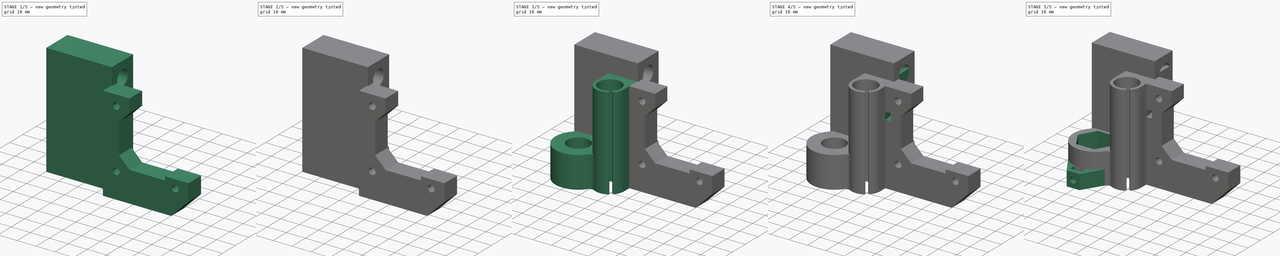
[diagram: build sequence overview — one tinted view per stage of 5, left to right]
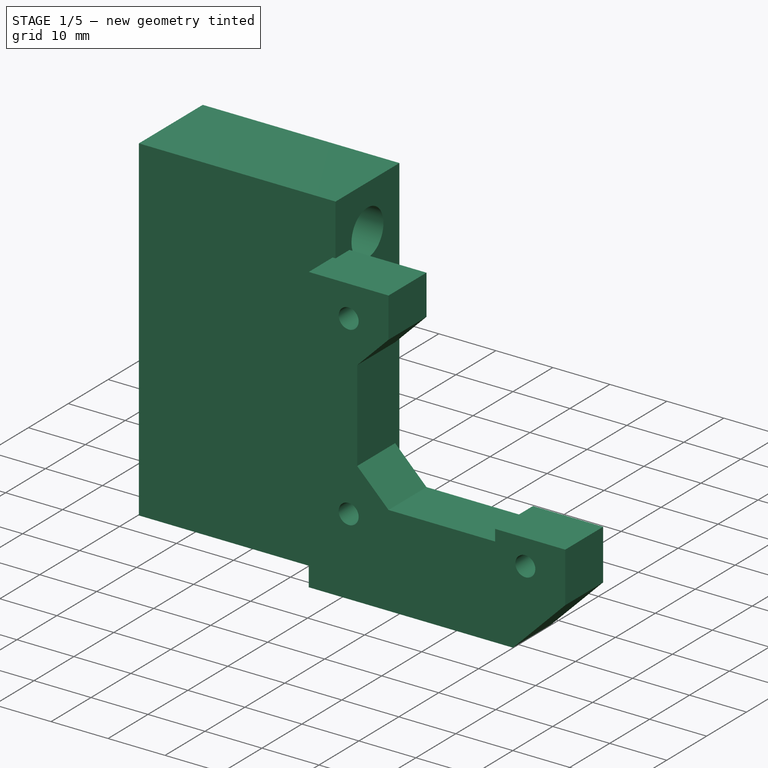
[diagram: stage 1 of 5 — iso view after this stage's code; geometry added in this stage tinted green]
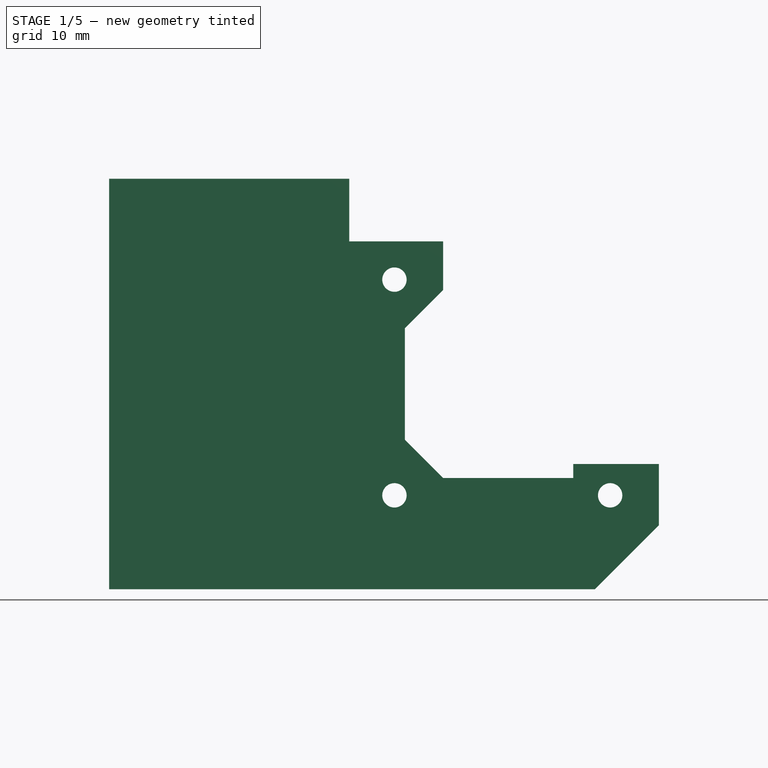
[diagram: stage 1 of 5 — front view after this stage's code; geometry added in this stage tinted green]
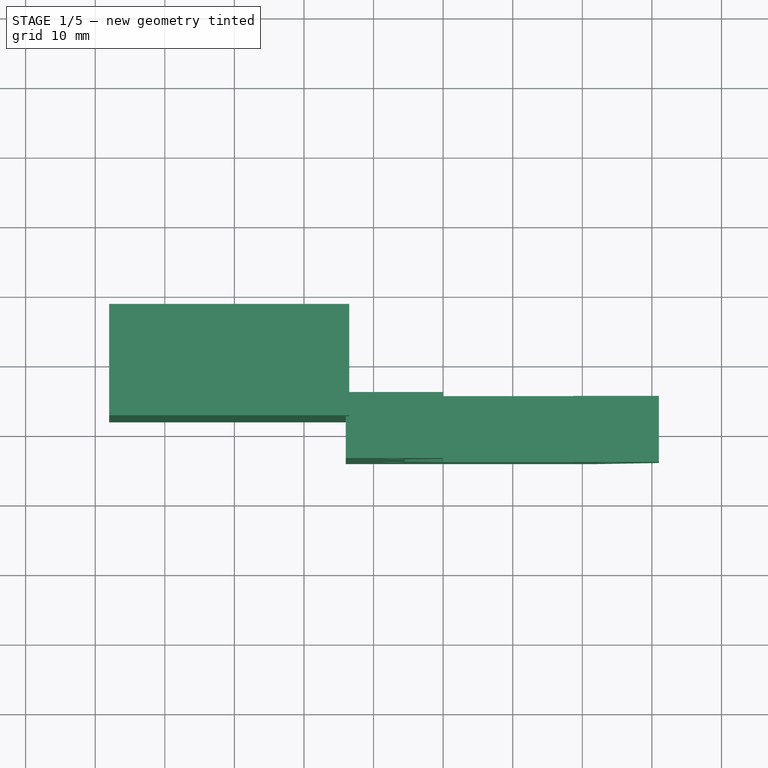
[diagram: stage 1 of 5 — top view after this stage's code; geometry added in this stage tinted green]
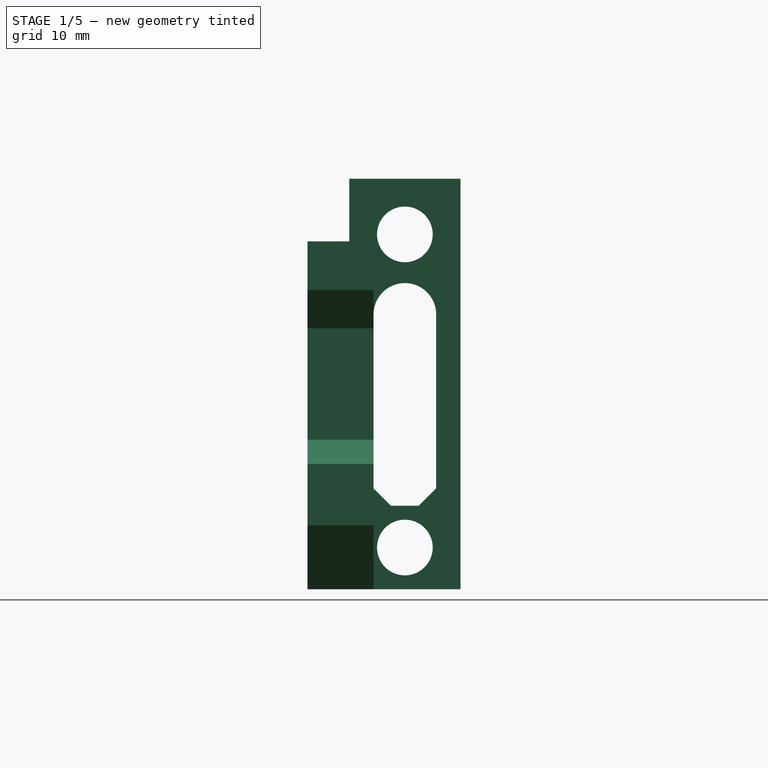
[diagram: stage 1 of 5 — right view after this stage's code; geometry added in this stage tinted green]
FCSTD DOCUMENT  (FreeCAD 0.15R4671 (Git))
Label: x-end-motor_felix_0.1
License: All rights reserved
LicenseURL: http://en.wikipedia.org/wiki/All_rights_reserved
objects: Sketcher::SketchObject×16, PartDesign::Pocket×8, PartDesign::Pad×6, Part::Box×2, App::MeasureDistance×2, Part::MultiFuse×1, PartDesign::Groove×1
note: 49 computed .brp shape members not serialized (recipe doc carries the construction recipe); baked Part::Feature solids carry a one-line shape summary decoded from their .brp

FEATURE [Part::Box] Box  label="Cube"
  Height = 59
  Length = 34.5
  Placement = pos=(-18,-8,-30) rot=(0,0,1;0rad)
  Width = 16
FEATURE [Sketcher::SketchObject] Sketch
  Placement = pos=(16.5,-8,-30) rot=(0.57735,0.57735,0.57735;2.0944rad)
  Support = -> Box [Face2]
  sketch-geometry (8):
    g0: Circle CenterX=8 CenterY=51 CenterZ=0 NormalX=0 NormalY=0 NormalZ=1 Radius=4
    g1: Circle CenterX=8 CenterY=6 CenterZ=0 NormalX=0 NormalY=0 NormalZ=1 Radius=4
    g2: ArcOfCircle CenterX=8 CenterY=39.5 CenterZ=0 NormalX=0 NormalY=0 NormalZ=1 Radius=4.5 StartAngle=6.28318 EndAngle=9.42478
    g3: LineSegment StartX=3.5 StartY=39.5 StartZ=0 EndX=3.5 EndY=14.5 EndZ=0
    g4: LineSegment StartX=3.5 StartY=14.5 StartZ=0 EndX=6 EndY=12 EndZ=0
    g5: LineSegment StartX=6 StartY=12 StartZ=0 EndX=10 EndY=12 EndZ=0
    g6: LineSegment StartX=10 StartY=12 StartZ=0 EndX=12.5 EndY=14.5 EndZ=0
    g7: LineSegment StartX=12.5 StartY=14.5 StartZ=0 EndX=12.5 EndY=39.5 EndZ=0
  constraints (24):
    c: Equal(g0,g1)
    c: Radius(g0) = 4
    c: Tangent(g2,g3)
    c: Coincident(g3,g4)
    c: Coincident(g4,g5)
    c: Horizontal(g5)
    c: Coincident(g5,g6)
    c: Coincident(g6,g7)
    c: Coincident(g7,g2)
    c: Vertical(g7)
    c: Tangent(g7,g2)
    c: Vertical(g3)
    c: DistanceX(g0,g2) = 0
    c: DistanceX(g2,g1) = 0
    c: Angle(g5,g4) = 2.35619
    c: Equal(g4,g6)
    c: Angle(g6,g5) = 2.35619
    c: DistanceY(g-1,g1) = 6
    c: DistanceY(g0,g1) = -45
    c: Radius(g2) = 4.5
    c: DistanceX(g-2,g2) = 3.5
    c: Distance(g1,g5) = 6
    c: Distance(g5) = 4
    c: DistanceY(g2,g0) = 11.5
FEATURE [PartDesign::Pocket] Pocket
  Length = 5
  Placement = pos=(-18,-8,-30) rot=(0,0,1;0rad)
  Sketch = -> Sketch
  Type = 1
FEATURE [Part::Box] Box001  label="Würfel"
  Height = 50
  Length = 45
  Placement = pos=(16,-14,-30) rot=(0,0,1;0rad)
  Width = 9.5
FEATURE [Sketcher::SketchObject] Sketch008
  ExternalGeometry = -> [Box001]
  Placement = pos=(16,-14,-30) rot=(1,0,0;1.5708rad)
  Support = -> Box001 [Face3]
  sketch-geometry (17):
    g0: LineSegment StartX=14 StartY=50 StartZ=0 EndX=14 EndY=43 EndZ=0
    g1: LineSegment StartX=14 StartY=43 StartZ=0 EndX=8.5 EndY=37.5 EndZ=0
    g2: LineSegment StartX=8.5 StartY=37.5 StartZ=0 EndX=8.5 EndY=21.5 EndZ=0
    g3: LineSegment StartX=8.5 StartY=21.5 StartZ=0 EndX=14 EndY=16 EndZ=0
    g4: LineSegment StartX=14 StartY=16 StartZ=0 EndX=32.6921 EndY=16 EndZ=0
    g5: LineSegment StartX=32.6921 StartY=16 StartZ=0 EndX=32.6921 EndY=18 EndZ=0
    g6: LineSegment StartX=45 StartY=18 StartZ=0 EndX=45 EndY=50 EndZ=0
    g7: LineSegment StartX=45 StartY=50 StartZ=0 EndX=14 EndY=50 EndZ=0
    g8: LineSegment StartX=45 StartY=9.19239 StartZ=0 EndX=35.8076 EndY=0 EndZ=0
    g9: Circle CenterX=7 CenterY=44.5 CenterZ=0 NormalX=0 NormalY=0 NormalZ=1 Radius=1.75
    g10: Circle CenterX=7 CenterY=13.5 CenterZ=0 NormalX=0 NormalY=0 NormalZ=1 Radius=1.75
    g11: Circle CenterX=38 CenterY=13.5 CenterZ=0 NormalX=0 NormalY=0 NormalZ=1 Radius=1.75
    g12: LineSegment [constr] StartX=7 StartY=44.5 StartZ=0 EndX=7 EndY=13.5 EndZ=0
    g13: LineSegment [constr] StartX=7 StartY=13.5 StartZ=0 EndX=38 EndY=13.5 EndZ=0
    g14: LineSegment StartX=32.6921 StartY=18 StartZ=0 EndX=45 EndY=18 EndZ=0
    g15: LineSegment StartX=45 StartY=0 StartZ=0 EndX=45 EndY=9.19239 EndZ=0
    g16: LineSegment StartX=45 StartY=0 StartZ=0 EndX=35.8076 EndY=0 EndZ=0
  constraints (47):
    c: Vertical(g0)
    c: Coincident(g0,g1)
    c: Coincident(g1,g2)
    c: Vertical(g2)
    c: Coincident(g2,g3)
    c: Coincident(g3,g4)
    c: Horizontal(g4)
    c: Coincident(g4,g5)
    c: Vertical(g5)
    c: Vertical(g6)
    c: Coincident(g6,g7)
    c: Horizontal(g7)
    c: DistanceX(g-2,g0) = 14
    c: DistanceX(g-2,g1) = 8.5
    c: Angle(g0,g1) = 2.35619
    c: Angle(g3,g2) = 2.35619
    c: DistanceY(g-1,g3) = 16
    c: Equal(g1,g3)
    c: Distance(g5) = 2
    c: PointOnObject(g8,g-3)
    c: PointOnObject(g8,g-1)
    c: Equal(g11,g10)
    c: Equal(g10,g9)
    c: Coincident(g12,g9)
    c: Coincident(g12,g10)
    c: Vertical(g12)
    c: Coincident(g13,g10)
    c: Horizontal(g13)
    c: Radius(g10) = 1.75
    c: Distance(g12) = 31
    c: Equal(g13,g12)
    c: Angle(g8,g-1) = 2.35619
    c: DistanceX(g0,g9) = -7
    c: Coincident(g14,g5)
    c: Coincident(g14,g6)
    c: Horizontal(g14)
    c: Coincident(g11,g13)
    c: Distance(g11,g14) = 4.5
    c: DistanceY(g1,g9) = 7
    c: Distance(g8) = 13
    c: PointOnObject(g6,g-3)
    c: Coincident(g-3,g6)
    c: Coincident(g0,g7)
    c: Coincident(g15,g-3)
    c: Coincident(g15,g8)
    c: Coincident(g16,g15)
    c: Coincident(g16,g8)
FEATURE [PartDesign::Pocket] Pocket002
  Length = 5
  Placement = pos=(16,-14,-30) rot=(0,0,1;0rad)
  Sketch = -> Sketch008
  Type = 1
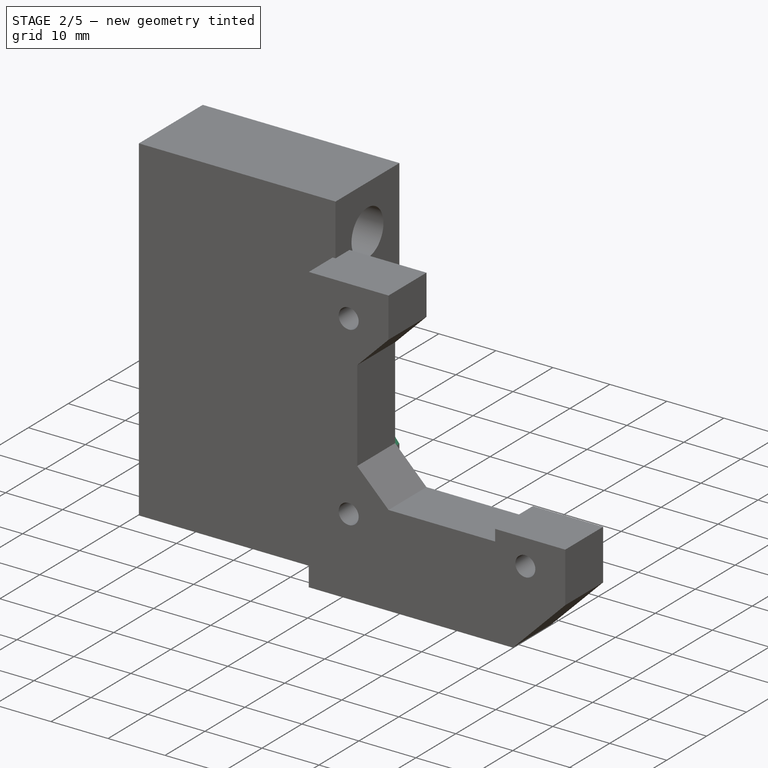
[diagram: stage 2 of 5 — iso view after this stage's code; geometry added in this stage tinted green]
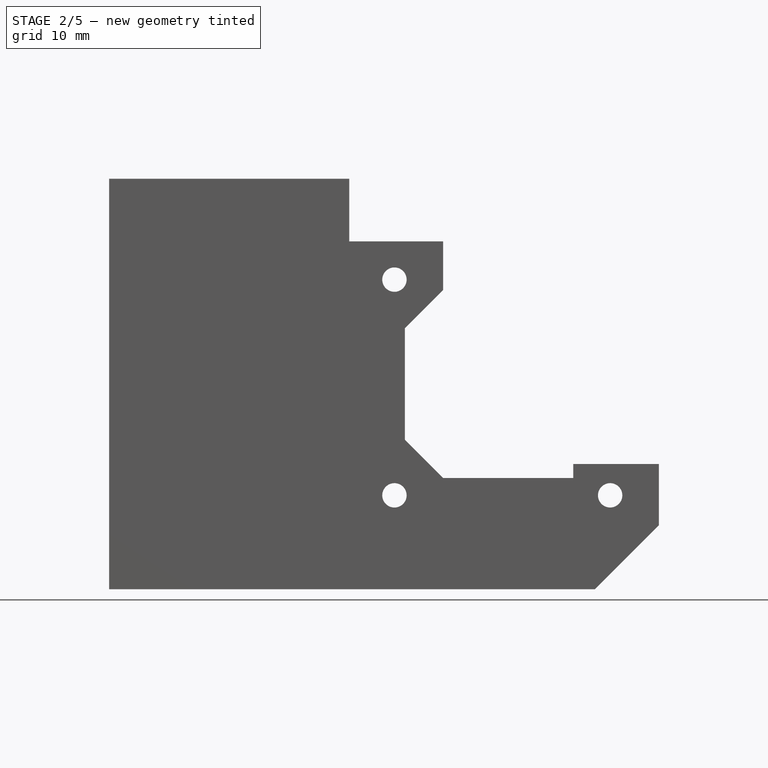
[diagram: stage 2 of 5 — front view after this stage's code; geometry added in this stage tinted green]
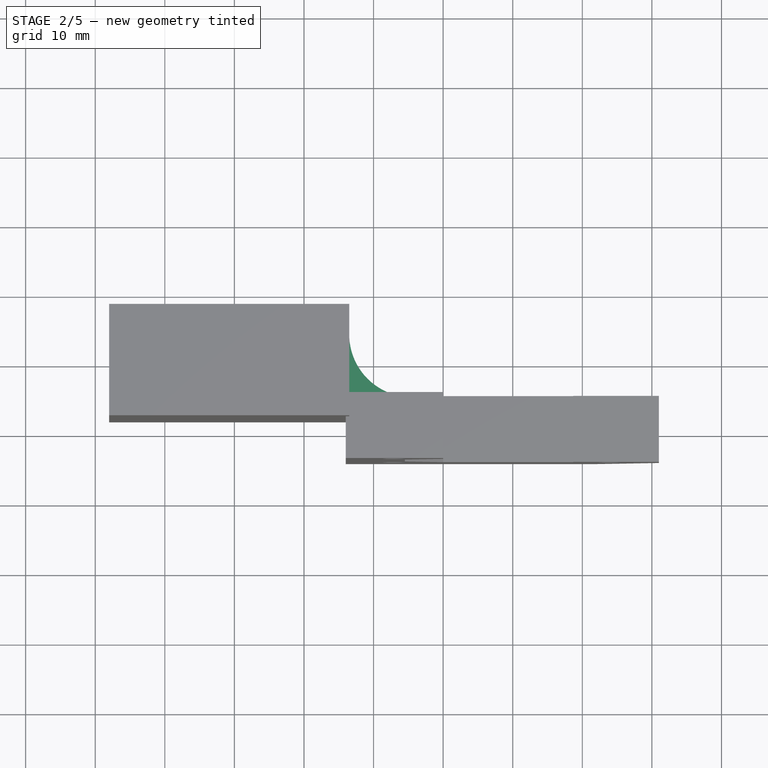
[diagram: stage 2 of 5 — top view after this stage's code; geometry added in this stage tinted green]
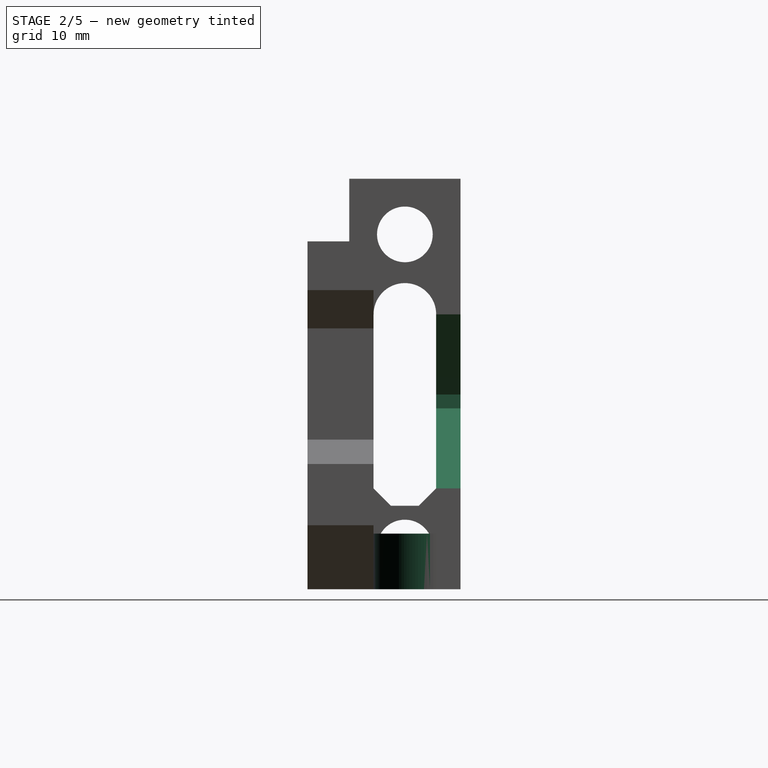
[diagram: stage 2 of 5 — right view after this stage's code; geometry added in this stage tinted green]
FEATURE [Sketcher::SketchObject] Sketch007
  ExternalGeometry = -> [Pocket]
  Placement = pos=(-18,8,-30) rot=(0,0.707107,0.707107;3.14159rad)
  Support = -> Pocket [Face5]
  sketch-geometry (4):
    g0: LineSegment StartX=-34.5 StartY=39.5 StartZ=0 EndX=-24.8504 EndY=28 EndZ=0
    g1: LineSegment StartX=-24.8504 StartY=28 StartZ=0 EndX=-24.8504 EndY=26 EndZ=0
    g2: LineSegment StartX=-24.8504 StartY=26 StartZ=0 EndX=-34.5 EndY=14.5 EndZ=0
    g3: LineSegment StartX=-34.5 StartY=14.5 StartZ=0 EndX=-34.5 EndY=39.5 EndZ=0
  constraints (10):
    c: Coincident(g-5,g0)
    c: Coincident(g0,g1)
    c: Vertical(g1)
    c: Coincident(g1,g2)
    c: Coincident(g2,g-4)
    c: Coincident(g2,g3)
    c: Coincident(g3,g0)
    c: Equal(g2,g0)
    c: Distance(g1) = 2
    c: Angle(g0,g-5) = 0.872665
FEATURE [PartDesign::Pocket] Pocket001
  Length = 5
  Placement = pos=(-18,-8,-30) rot=(0,0,1;0rad)
  Sketch = -> Sketch007
  Type = 2
FEATURE [Part::MultiFuse] Fusion
  Shapes = -> [Pocket002,Pocket001]
FEATURE [Sketcher::SketchObject] Sketch010
  ExternalGeometry = -> [Fusion]
  Placement = pos=(0,0,-30) rot=(1,0,0;3.14159rad)
  Support = -> Fusion [Face23]
  sketch-geometry (3):
    g0: ArcOfCircle CenterX=25.5 CenterY=-4.5 CenterZ=0 NormalX=0 NormalY=0 NormalZ=1 Radius=9 StartAngle=1.5708 EndAngle=3.14159
    g1: LineSegment StartX=16.5 StartY=-4.49997 StartZ=0 EndX=16.5 EndY=4.5 EndZ=0
    g2: LineSegment StartX=16.5 StartY=4.5 StartZ=0 EndX=25.5 EndY=4.5 EndZ=0
  constraints (10):
    c: PointOnObject(g0,g-3)
    c: PointOnObject(g0,g-4)
    c: Tangent(g0,g-3)
    c: Tangent(g0,g-4)
    c: Radius(g0) = 9
    c: Coincident(g0,g1)
    c: Coincident(g1,g2)
    c: Coincident(g2,g0)
    c: Horizontal(g2)
    c: Vertical(g1)
FEATURE [PartDesign::Pad] Pad
  Length = 8
  Length2 = 100
  Reversed = true
  Sketch = -> Sketch010
  Type = 0
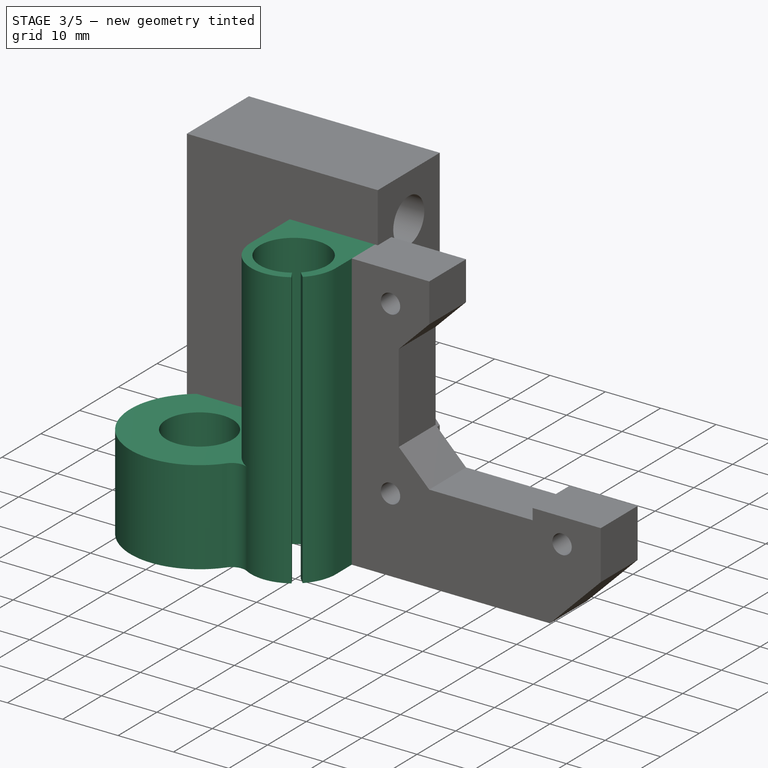
[diagram: stage 3 of 5 — iso view after this stage's code; geometry added in this stage tinted green]
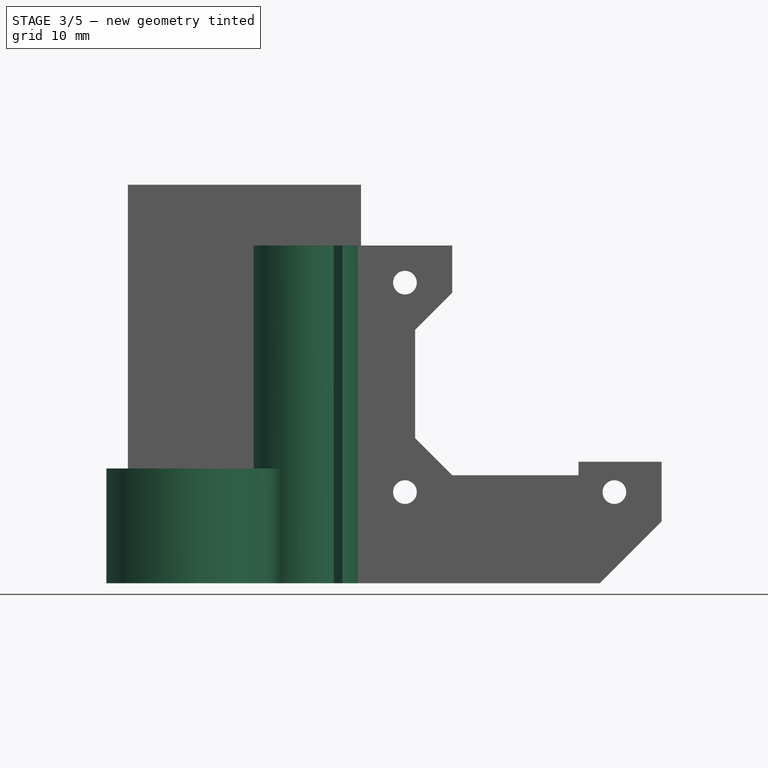
[diagram: stage 3 of 5 — front view after this stage's code; geometry added in this stage tinted green]
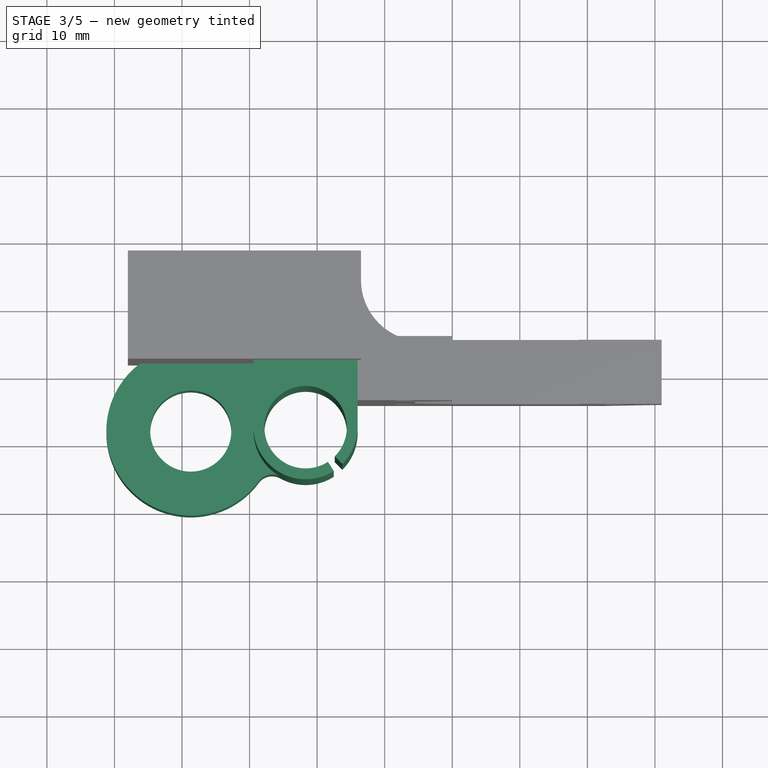
[diagram: stage 3 of 5 — top view after this stage's code; geometry added in this stage tinted green]
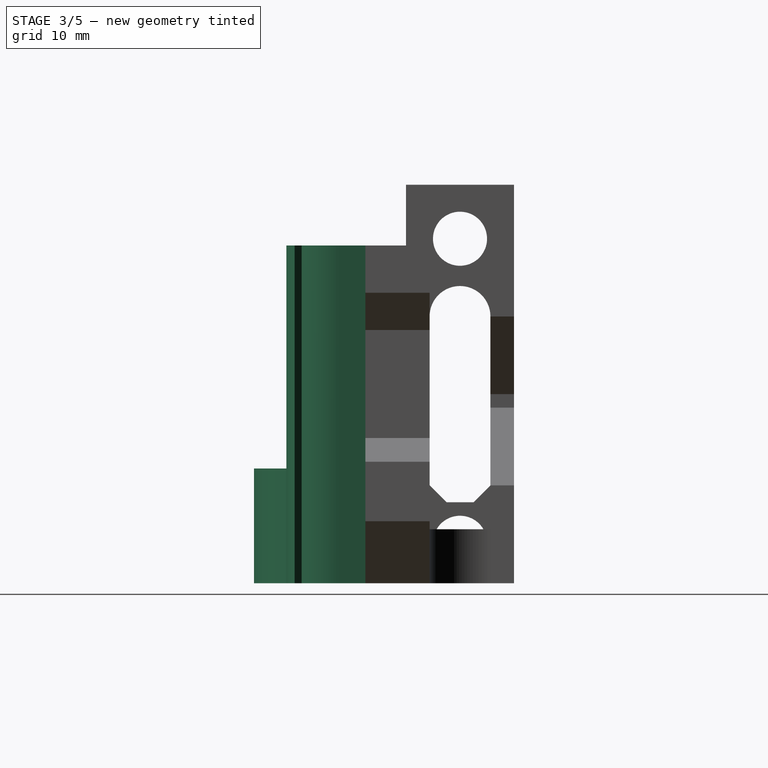
[diagram: stage 3 of 5 — right view after this stage's code; geometry added in this stage tinted green]
FEATURE [Sketcher::SketchObject] Sketch011
  ExternalGeometry = -> [Pad]
  Placement = pos=(16.5,0,0) rot=(0.57735,0.57735,0.57735;2.0944rad)
  Support = -> Pad [Face25]
  sketch-geometry (2):
    g0: ArcOfCircle CenterX=0 CenterY=-24 CenterZ=0 NormalX=0 NormalY=0 NormalZ=1 Radius=4 StartAngle=2.61799 EndAngle=6.80678
    g1: LineSegment StartX=-3.4641 StartY=-22 StartZ=0 EndX=3.4641 EndY=-22 EndZ=0
  constraints (5):
    c: Coincident(g0,g-3)
    c: Coincident(g0,g-3)
    c: Coincident(g1,g-3)
    c: Coincident(g1,g0)
    c: PointOnObject(g0,g1)
FEATURE [PartDesign::Pad] Pad001
  Length = 2
  Length2 = 100
  Reversed = true
  Sketch = -> Sketch011
  Type = 0
FEATURE [Sketcher::SketchObject] Sketch009
  ExternalGeometry = -> [Pocket002]
  Placement = pos=(0,-4.5,0) rot=(0,0.707107,0.707107;3.14159rad)
  Support = -> Pad001 [Face19]
  sketch-geometry (3):
    g0: Circle CenterX=-23 CenterY=14.5 CenterZ=0 NormalX=0 NormalY=0 NormalZ=1 Radius=3.5
    g1: Circle CenterX=-54 CenterY=-16.5 CenterZ=0 NormalX=0 NormalY=0 NormalZ=1 Radius=3.5
    g2: Circle CenterX=-23 CenterY=-16.5 CenterZ=0 NormalX=0 NormalY=0 NormalZ=1 Radius=3.5
  constraints (6):
    c: Coincident(g0,g-3)
    c: Coincident(g1,g-4)
    c: Coincident(g2,g-5)
    c: Equal(g0,g2)
    c: Equal(g2,g1)
    c: Radius(g1) = 3.5
FEATURE [PartDesign::Pocket] Pocket003
  Length = 2
  Sketch = -> Sketch009
  Type = 0
FEATURE [Sketcher::SketchObject] Sketch012
  ExternalGeometry = -> [Pocket003]
  Placement = pos=(0,0,-30) rot=(1,0,0;3.14159rad)
  Support = -> Pocket003 [Face26]
  sketch-geometry (8):
    g0: ArcOfCircle CenterX=8.3 CenterY=18 CenterZ=0 NormalX=0 NormalY=0 NormalZ=1 Radius=7.7 StartAngle=4.56784e-06 EndAngle=0.785398
    g1: ArcOfCircle CenterX=8.3 CenterY=18 CenterZ=0 NormalX=0 NormalY=0 NormalZ=1 Radius=6.1 StartAngle=0.998918 EndAngle=7.06858
    g2: LineSegment StartX=16 StartY=18 StartZ=0 EndX=16 EndY=8 EndZ=0
    g3: LineSegment StartX=13.7447 StartY=23.4447 StartZ=0 EndX=12.6134 EndY=22.3134 EndZ=0
    g4: ArcOfCircle CenterX=8.3 CenterY=18 CenterZ=0 NormalX=0 NormalY=0 NormalZ=1 Radius=7.7 StartAngle=0.998918 EndAngle=3.14159
    g5: LineSegment StartX=11.6014 StartY=23.1294 StartZ=0 EndX=12.4673 EndY=24.4748 EndZ=0
    g6: LineSegment StartX=0.6 StartY=18 StartZ=0 EndX=0.6 EndY=8 EndZ=0
    g7: LineSegment StartX=0.6 StartY=8 StartZ=0 EndX=16 EndY=8 EndZ=0
  constraints (24):
    c: Coincident(g1,g0)
    c: Radius(g1) = 6.1
    c: Coincident(g2,g0)
    c: Vertical(g2)
    c: Coincident(g3,g0)
    c: Coincident(g3,g1)
    c: Perpendicular(g0,g3)
    c: Distance(g3) = 1.6
    c: Coincident(g2,g-3)
    c: Tangent(g2,g0)
    c: Coincident(g5,g1)
    c: Coincident(g5,g4)
    c: Perpendicular(g4,g5)
    c: Distance(g1,g1) = 1.3
    c: Coincident(g4,g0)
    c: Equal(g4,g0)
    c: Distance(g0,g-3) = 10
    c: Coincident(g6,g4)
    c: Vertical(g6)
    c: Coincident(g7,g6)
    c: PointOnObject(g6,g-3)
    c: Tangent(g6,g4)
    c: Angle(g3,g-3) = 2.35619
    c: Coincident(g7,g2)
FEATURE [PartDesign::Pad] Pad002
  Length = 50
  Length2 = 100
  Reversed = true
  Sketch = -> Sketch012
  Type = 0
FEATURE [Sketcher::SketchObject] Sketch013
  ExternalGeometry = -> [Pad002]
  Placement = pos=(0,0,-30) rot=(1,0,0;3.14159rad)
  Support = -> Pad002 [Face35]
  sketch-geometry (7):
    g0: LineSegment [constr] StartX=8.3 StartY=18 StartZ=0 EndX=-8.7 EndY=18 EndZ=0
    g1: Circle CenterX=-8.7 CenterY=18 CenterZ=0 NormalX=0 NormalY=0 NormalZ=1 Radius=6
    g2: ArcOfCircle CenterX=-8.7 CenterY=18 CenterZ=0 NormalX=0 NormalY=0 NormalZ=1 Radius=12.5 StartAngle=0.637068 EndAngle=4.06889
    g3: LineSegment StartX=-16.2 StartY=8 StartZ=0 EndX=0.6 EndY=8 EndZ=0
    g4: LineSegment StartX=0.6 StartY=8 StartZ=0 EndX=0.6 EndY=18 EndZ=0
    g5: ArcOfCircle CenterX=3.35765 CenterY=26.9226 CenterZ=0 NormalX=0 NormalY=0 NormalZ=1 Radius=2.5 StartAngle=3.77866 EndAngle=5.21823
    g6: ArcOfCircle CenterX=8.3 CenterY=18 CenterZ=0 NormalX=0 NormalY=0 NormalZ=1 Radius=7.7 StartAngle=2.07664 EndAngle=3.14159
  constraints (20):
    c: Coincident(g0,g-3)
    c: Horizontal(g0)
    c: Distance(g0) = 17
    c: Coincident(g1,g0)
    c: Radius(g1) = 6
    c: Coincident(g2,g0)
    c: Radius(g2) = 12.5
    c: PointOnObject(g2,g-4)
    c: Coincident(g4,g3)
    c: Coincident(g3,g2)
    c: Coincident(g3,g-4)
    c: Coincident(g5,g2)
    c: PointOnObject(g5,g-3)
    c: Tangent(g5,g-3)
    c: Coincident(g6,g5)
    c: Coincident(g6,g0)
    c: Coincident(g4,g6)
    c: Tangent(g4,g6)
    c: Radius(g5) = 2.5
    c: Tangent(g5,g2)
FEATURE [PartDesign::Pad] Pad003
  Length = 17
  Length2 = 100
  Reversed = true
  Sketch = -> Sketch013
  Type = 0
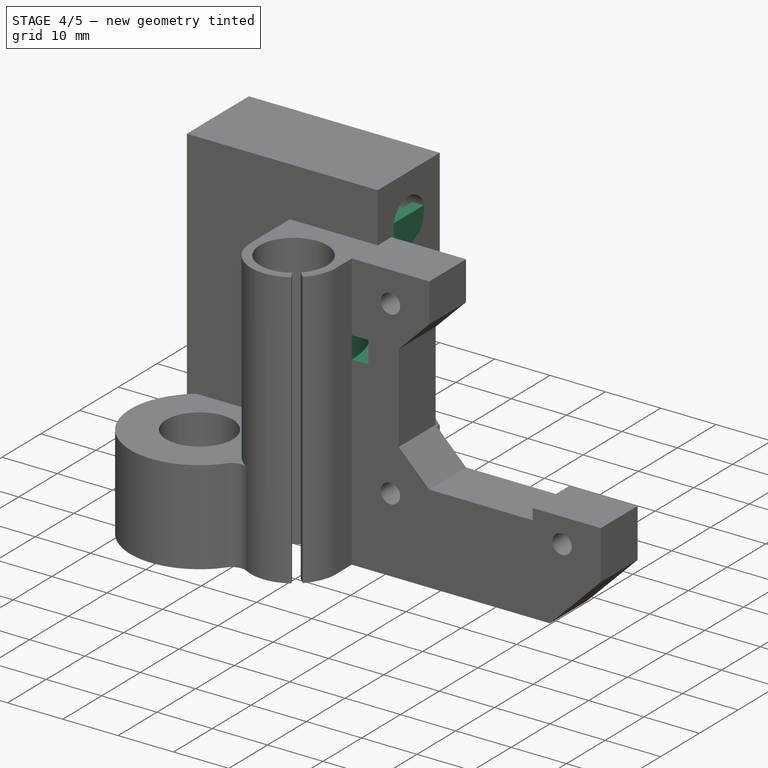
[diagram: stage 4 of 5 — iso view after this stage's code; geometry added in this stage tinted green]
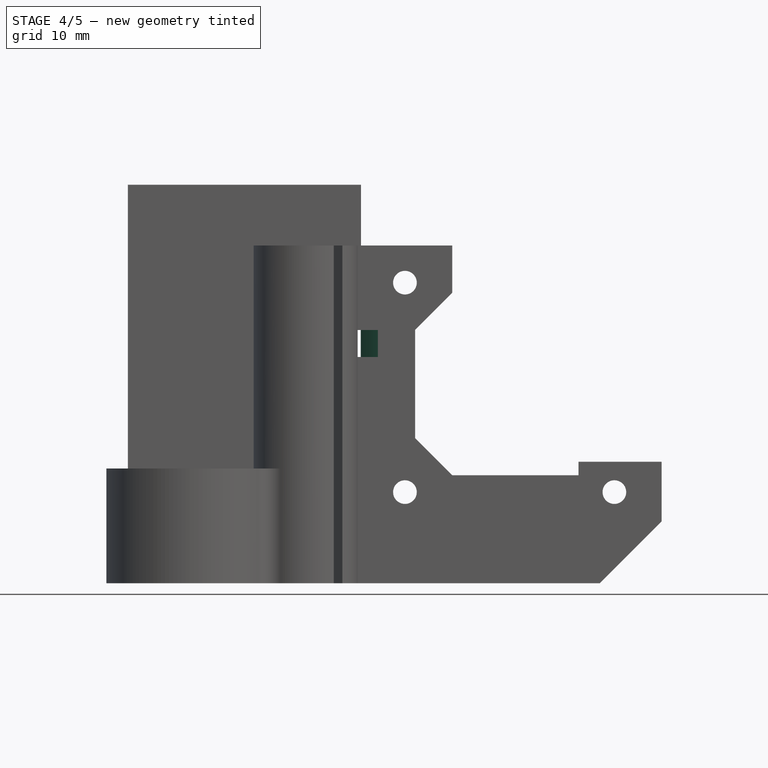
[diagram: stage 4 of 5 — front view after this stage's code; geometry added in this stage tinted green]
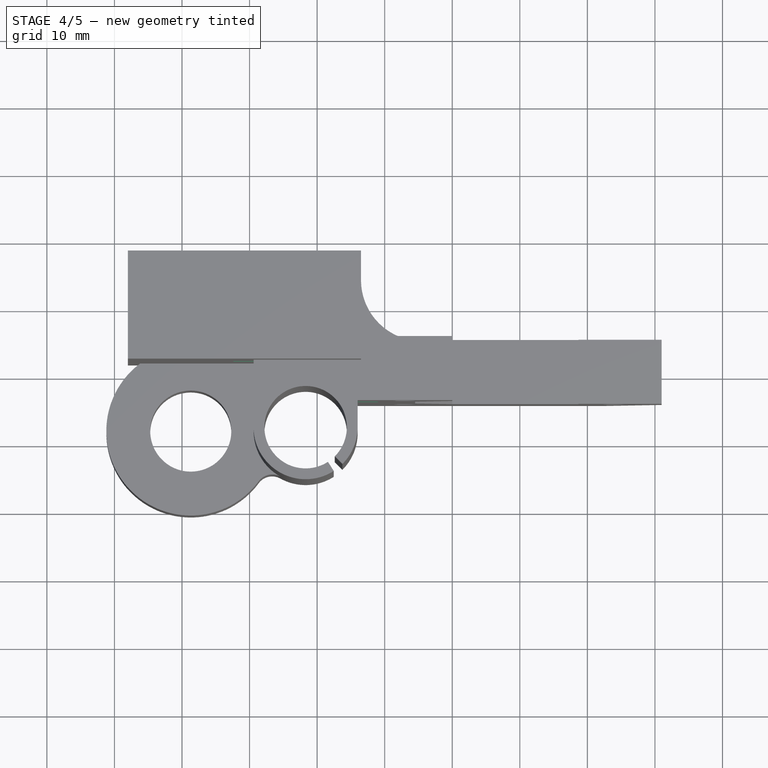
[diagram: stage 4 of 5 — top view after this stage's code; geometry added in this stage tinted green]
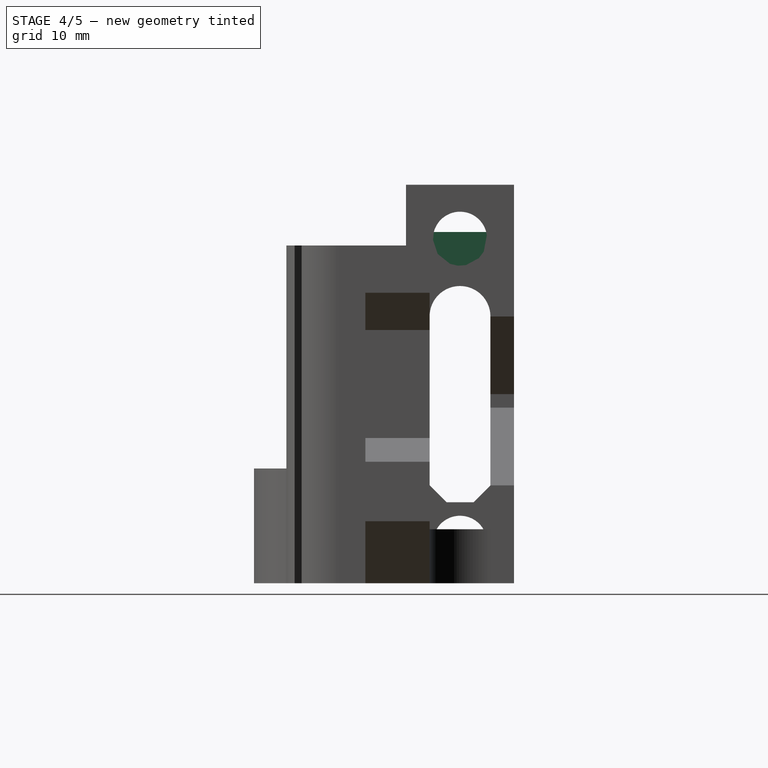
[diagram: stage 4 of 5 — right view after this stage's code; geometry added in this stage tinted green]
FEATURE [Sketcher::SketchObject] Sketch014
  ExternalGeometry = -> [Pad003]
  Placement = pos=(0,0,-13) rot=(0,0,1;0rad)
  Support = -> Pad003 [Face55]
  sketch-geometry (7):
    g0: LineSegment StartX=-12.9771 StartY=13.2 StartZ=0 EndX=-23.0229 EndY=13.2 EndZ=0
    g1: LineSegment StartX=-23.0229 StartY=13.2 StartZ=0 EndX=-28.0459 EndY=4.5 EndZ=0
    g2: LineSegment StartX=-28.0459 StartY=4.5 StartZ=0 EndX=-23.0229 EndY=-4.2 EndZ=0
    g3: LineSegment StartX=-23.0229 StartY=-4.2 StartZ=0 EndX=-12.9771 EndY=-4.2 EndZ=0
    g4: LineSegment StartX=-12.9771 StartY=-4.2 StartZ=0 EndX=-7.95411 EndY=4.5 EndZ=0
    g5: LineSegment StartX=-7.95411 StartY=4.5 StartZ=0 EndX=-12.9771 EndY=13.2 EndZ=0
    g6: Circle [constr] CenterX=-9.39189 CenterY=-19.8561 CenterZ=0 NormalX=0 NormalY=0 NormalZ=1 Radius=10.0459
  constraints (17):
    c: Coincident(g0,g1)
    c: Coincident(g1,g2)
    c: Coincident(g2,g3)
    c: Coincident(g3,g4)
    c: Coincident(g4,g5)
    c: Coincident(g5,g0)
    c: Equal(g0, g1-g5) x5
    c: PointOnObject(g0,g6)
    c: PointOnObject(g1,g6)
    c: PointOnObject(g2,g6)
    c: PointOnObject(g3,g6)
    c: PointOnObject(g4,g6)
    c: PointOnObject(g5,g6)
    c: Coincident(g3,g-3)
    c: Distance(g2,g0) = 17.4
    c: Horizontal(g0)
    c: Coincident(g6,g-3)
FEATURE [Sketcher::SketchObject] Sketch019
  ExternalGeometry = -> [Pad003]
  Placement = pos=(16.5,0,0) rot=(0.57735,0.57735,0.57735;2.0944rad)
  Support = -> Pad003 [Face25]
  sketch-geometry (4):
    g0: LineSegment StartX=-4.5 StartY=22 StartZ=0 EndX=4.5 EndY=22 EndZ=0
    g1: LineSegment StartX=4.5 StartY=22 StartZ=0 EndX=4.5 EndY=16.5 EndZ=0
    g2: LineSegment StartX=4.5 StartY=16.5 StartZ=0 EndX=-4.5 EndY=16.5 EndZ=0
    g3: LineSegment StartX=-4.5 StartY=16.5 StartZ=0 EndX=-4.5 EndY=22 EndZ=0
  constraints (12):
    c: Coincident(g0,g1)
    c: Coincident(g1,g2)
    c: Coincident(g2,g3)
    c: Coincident(g3,g0)
    c: Horizontal(g0)
    c: Horizontal(g2)
    c: Vertical(g1)
    c: Vertical(g3)
    c: DistanceX(g-2,g0) = 4.5
    c: Distance(g1) = 5.5
    c: Distance(g-3,g0) = 1
    c: Distance(g-3,g3) = 4.5
FEATURE [PartDesign::Pad] Pad004
  Length = 2
  Length2 = 100
  Reversed = true
  Sketch = -> Sketch019
  Type = 0
FEATURE [Sketcher::SketchObject] Sketch015
  ExternalGeometry = -> [Pad004]
  Placement = pos=(0,-14,0) rot=(1,0,0;1.5708rad)
  Support = -> Pad004 [Face2]
  sketch-geometry (4):
    g0: LineSegment StartX=16 StartY=7.5 StartZ=0 EndX=19 EndY=7.5 EndZ=0
    g1: LineSegment StartX=19 StartY=7.5 StartZ=0 EndX=19 EndY=3.5 EndZ=0
    g2: LineSegment StartX=19 StartY=3.5 StartZ=0 EndX=16 EndY=3.5 EndZ=0
    g3: LineSegment StartX=16 StartY=3.5 StartZ=0 EndX=16 EndY=7.5 EndZ=0
  constraints (12):
    c: Coincident(g0,g1)
    c: Coincident(g1,g2)
    c: Coincident(g2,g3)
    c: Coincident(g3,g0)
    c: Horizontal(g0)
    c: Horizontal(g2)
    c: Vertical(g1)
    c: Vertical(g3)
    c: Distance(g1) = 4
    c: Distance(g2) = 3
    c: PointOnObject(g-3,g0)
    c: PointOnObject(g0,g-4)
FEATURE [PartDesign::Groove] Groove
  Angle = 40
  Axis = (0,0,1)
  Base = (0,-14,0)
  ReferenceAxis = -> Sketch015 [V_Axis]
  Sketch = -> Sketch015
FEATURE [Sketcher::SketchObject] Sketch016
  ExternalGeometry = -> [Groove]
  Placement = pos=(0,-8,0) rot=(1,0,0;1.5708rad)
  Support = -> Groove [Face33]
  sketch-geometry (4):
    g0: LineSegment StartX=0.6 StartY=7.5 StartZ=0 EndX=-2.4 EndY=7.5 EndZ=0
    g1: LineSegment StartX=-2.4 StartY=7.5 StartZ=0 EndX=-2.4 EndY=3.5 EndZ=0
    g2: LineSegment StartX=-2.4 StartY=3.5 StartZ=0 EndX=0.6 EndY=3.5 EndZ=0
    g3: LineSegment StartX=0.6 StartY=3.5 StartZ=0 EndX=0.6 EndY=7.5 EndZ=0
  constraints (12):
    c: Coincident(g0,g1)
    c: Coincident(g1,g2)
    c: Coincident(g2,g3)
    c: Coincident(g3,g0)
    c: Horizontal(g0)
    c: Horizontal(g2)
    c: Vertical(g1)
    c: Vertical(g3)
    c: Distance(g0) = 3
    c: Distance(g1) = 4
    c: PointOnObject(g-3,g0)
    c: PointOnObject(g0,g-4)
FEATURE [PartDesign::Pocket] Pocket004
  Length = 5
  Sketch = -> Sketch016
  Type = 0
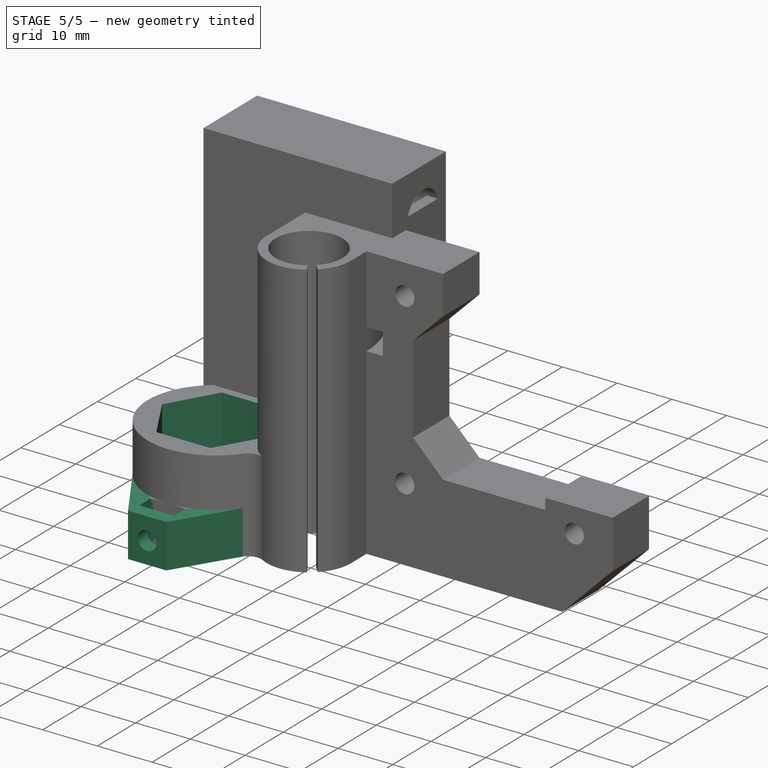
[diagram: stage 5 of 5 — iso view after this stage's code; geometry added in this stage tinted green]
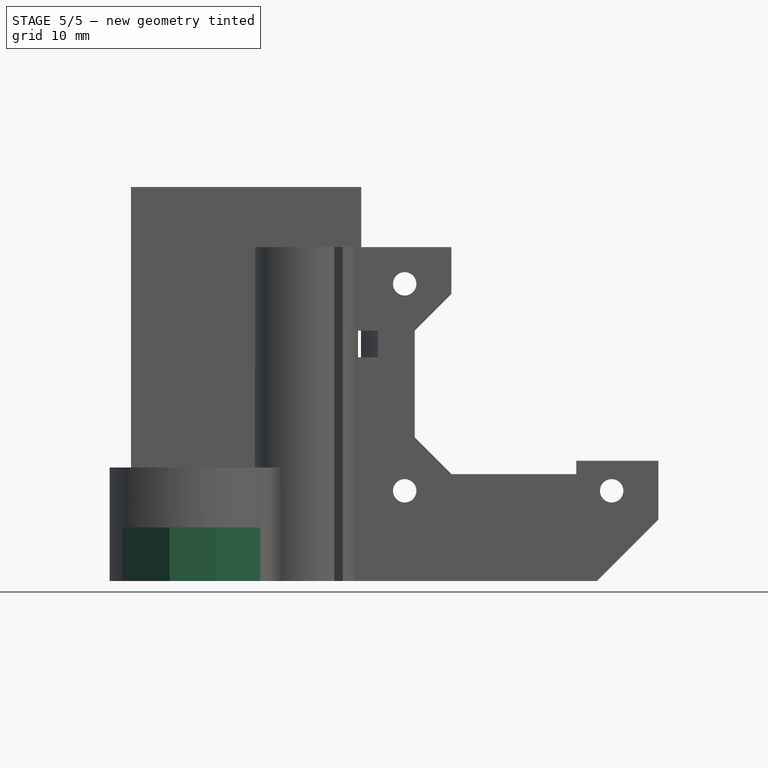
[diagram: stage 5 of 5 — front view after this stage's code; geometry added in this stage tinted green]
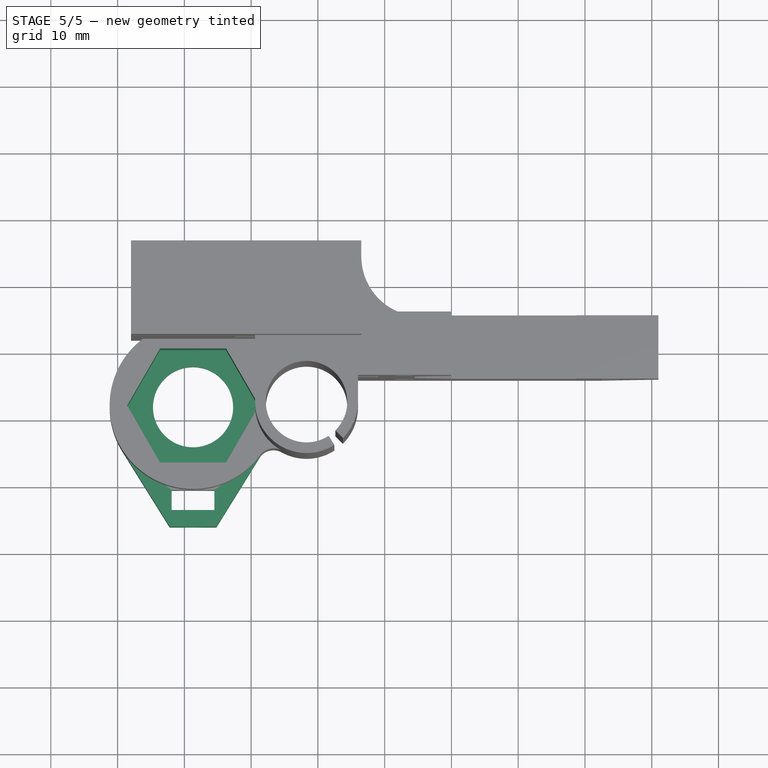
[diagram: stage 5 of 5 — top view after this stage's code; geometry added in this stage tinted green]
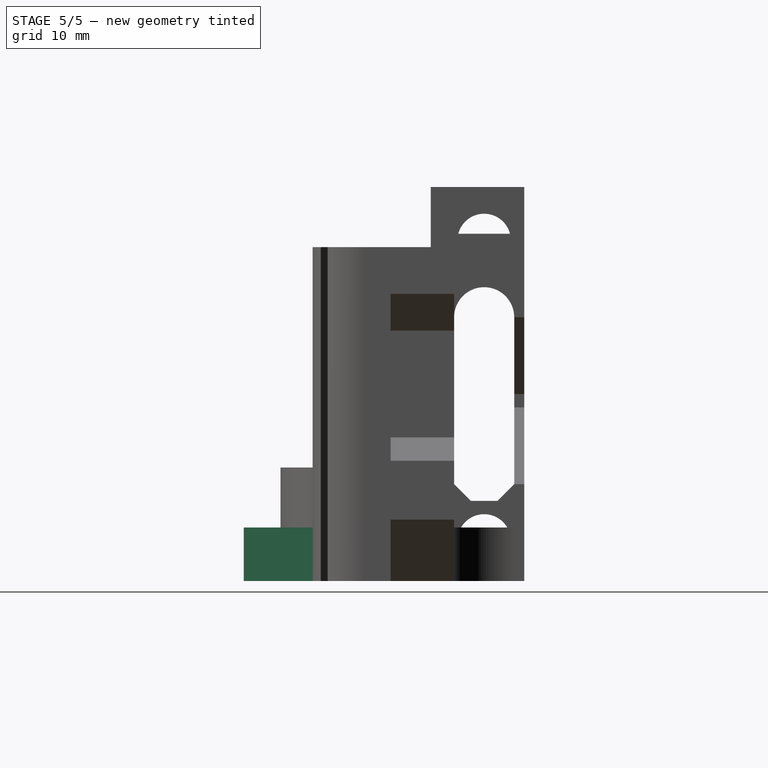
[diagram: stage 5 of 5 — right view after this stage's code; geometry added in this stage tinted green]
FEATURE [Sketcher::SketchObject] Sketch020
  ExternalGeometry = -> [Pocket004]
  Placement = pos=(0,0,-30) rot=(1,0,0;3.14159rad)
  Support = -> Pocket004 [Face46]
  sketch-geometry (9):
    g0: LineSegment StartX=-19.3039 StartY=24.6187 StartZ=0 EndX=-12.2 EndY=36 EndZ=0
    g1: LineSegment StartX=-12.2 StartY=36 StartZ=0 EndX=-5.2 EndY=36 EndZ=0
    g2: LineSegment StartX=-5.2 StartY=36 StartZ=0 EndX=1.34804 EndY=25.4355 EndZ=0
    g3: LineSegment StartX=-11.9 StartY=33.5 StartZ=0 EndX=-5.5 EndY=33.5 EndZ=0
    g4: LineSegment StartX=-5.5 StartY=33.5 StartZ=0 EndX=-5.5 EndY=30.5 EndZ=0
    g5: LineSegment StartX=-5.5 StartY=30.5 StartZ=0 EndX=-11.9 EndY=30.5 EndZ=0
    g6: LineSegment StartX=-11.9 StartY=30.5 StartZ=0 EndX=-11.9 EndY=33.5 EndZ=0
    g7: LineSegment [constr] StartX=-8.7 StartY=18 StartZ=0 EndX=-8.7 EndY=36 EndZ=0
    g8: LineSegment StartX=-19.3039 StartY=24.6187 StartZ=0 EndX=1.34804 EndY=25.4355 EndZ=0
  constraints (26):
    c: Coincident(g0,g1)
    c: Horizontal(g1)
    c: Coincident(g1,g2)
    c: Coincident(g3,g4)
    c: Coincident(g4,g5)
    c: Coincident(g5,g6)
    c: Coincident(g6,g3)
    c: Horizontal(g3)
    c: Horizontal(g5)
    c: Vertical(g4)
    c: Vertical(g6)
    c: Coincident(g7,g-3)
    c: PointOnObject(g7,g1)
    c: Vertical(g7)
    c: Distance(g7,g1) = 3.5
    c: Distance(g0,g7) = 3.5
    c: Distance(g4) = 3
    c: Distance(g5) = 6.4
    c: Distance(g3,g7) = 3.2
    c: PointOnObject(g0,g-3)
    c: Tangent(g0,g-3)
    c: Coincident(g2,g-3)
    c: Distance(g7,g5) = 12.5
    c: Distance(g-3,g1) = 28
    c: Coincident(g8,g0)
    c: Coincident(g8,g2)
FEATURE [PartDesign::Pad] Pad005
  Length = 8
  Length2 = 100
  Reversed = true
  Sketch = -> Sketch020
  Type = 0
FEATURE [Sketcher::SketchObject] Sketch021
  ExternalGeometry = -> [Pad005]
  Placement = pos=(0,-36,0) rot=(1,0,0;1.5708rad)
  Support = -> Pad005 [Face79]
  sketch-geometry (1):
    g0: Circle CenterX=-8.7 CenterY=-26 CenterZ=0 NormalX=0 NormalY=0 NormalZ=1 Radius=1.7
  constraints (3):
    c: Radius(g0) = 1.7
    c: PointOnObject(g0,g-4)
    c: Distance(g0,g-3) = 4
FEATURE [PartDesign::Pocket] Pocket005
  Length = 13
  Sketch = -> Sketch021
  Type = 0
FEATURE [Sketcher::SketchObject] Sketch022
  ExternalGeometry = -> [Pocket005]
  Placement = pos=(0,0,-13) rot=(0,0,1;0rad)
  Support = -> Pocket005 [Face60]
  sketch-geometry (7):
    g0: LineSegment StartX=-3.76366 StartY=-26.55 StartZ=0 EndX=1.17269 EndY=-18 EndZ=0
    g1: LineSegment StartX=1.17269 StartY=-18 StartZ=0 EndX=-3.76366 EndY=-9.45 EndZ=0
    g2: LineSegment StartX=-3.76366 StartY=-9.45 StartZ=0 EndX=-13.6363 EndY=-9.45 EndZ=0
    g3: LineSegment StartX=-13.6363 StartY=-9.45 StartZ=0 EndX=-18.5727 EndY=-18 EndZ=0
    g4: LineSegment StartX=-18.5727 StartY=-18 StartZ=0 EndX=-13.6363 EndY=-26.55 EndZ=0
    g5: LineSegment StartX=-13.6363 StartY=-26.55 StartZ=0 EndX=-3.76366 EndY=-26.55 EndZ=0
    g6: Circle [constr] CenterX=-8.7 CenterY=-18 CenterZ=0 NormalX=0 NormalY=0 NormalZ=1 Radius=9.87269
  constraints (16):
    c: Coincident(g0,g1)
    c: Coincident(g1,g2)
    c: Coincident(g2,g3)
    c: Coincident(g3,g4)
    c: Coincident(g4,g5)
    c: Coincident(g5,g0)
    c: Equal(g0, g1-g5) x5
    c: PointOnObject(g0,g6)
    c: PointOnObject(g1,g6)
    c: PointOnObject(g2,g6)
    c: PointOnObject(g3,g6)
    c: PointOnObject(g4,g6)
    c: PointOnObject(g5,g6)
    c: Distance(g0,g2) = 17.1
    c: Horizontal(g2)
    c: Coincident(g6,g-3)
FEATURE [PartDesign::Pocket] Pocket006
  Length = 30
  Midplane = true
  Sketch = -> Sketch022
  Type = 0
FEATURE [Sketcher::SketchObject] Sketch023
  ExternalGeometry = -> [Pocket006]
  Placement = pos=(0,0,29) rot=(0,0,1;0rad)
  Support = -> Pocket006 [Face57]
  sketch-geometry (4):
    g0: LineSegment StartX=-18 StartY=8 StartZ=0 EndX=16.5 EndY=8 EndZ=0
    g1: LineSegment StartX=16.5 StartY=8 StartZ=0 EndX=16.5 EndY=6 EndZ=0
    g2: LineSegment StartX=16.5 StartY=6 StartZ=0 EndX=-18 EndY=6 EndZ=0
    g3: LineSegment StartX=-18 StartY=6 StartZ=0 EndX=-18 EndY=8 EndZ=0
  constraints (11):
    c: Coincident(g0,g1)
    c: Coincident(g1,g2)
    c: Coincident(g2,g3)
    c: Coincident(g3,g0)
    c: Horizontal(g0)
    c: Horizontal(g2)
    c: Vertical(g1)
    c: Vertical(g3)
    c: Coincident(g0,g-3)
    c: Distance(g2,g0) = 2
    c: Coincident(g0,g-3)
FEATURE [PartDesign::Pocket] Pocket007
  Length = 100
  Sketch = -> Sketch023
  Type = 0
FEATURE [App::MeasureDistance] Distance  label="Distance: 1.716"
  Distance = 1.71593
  P1 = (-18,5.71445,-24.0713)
  P2 = (-18,4,-24)
FEATURE [App::MeasureDistance] Distance001  label="Distance: 1.371"
  Distance = 1.37057
  P1 = (-18,5.8705,-1.31468)
  P2 = (-18,4.5,-1.30116)
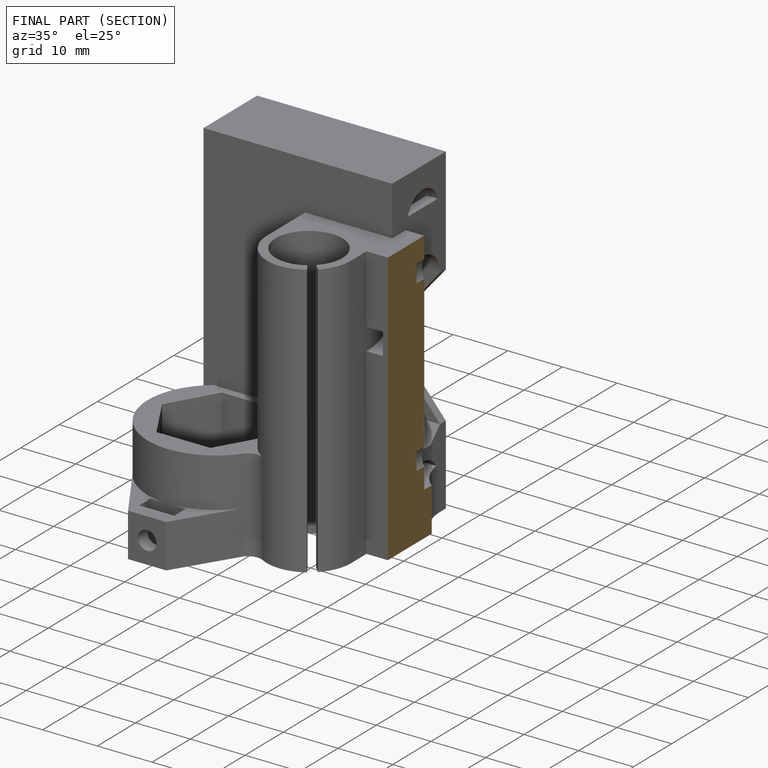
[diagram: finished part — half-section view (interior)]
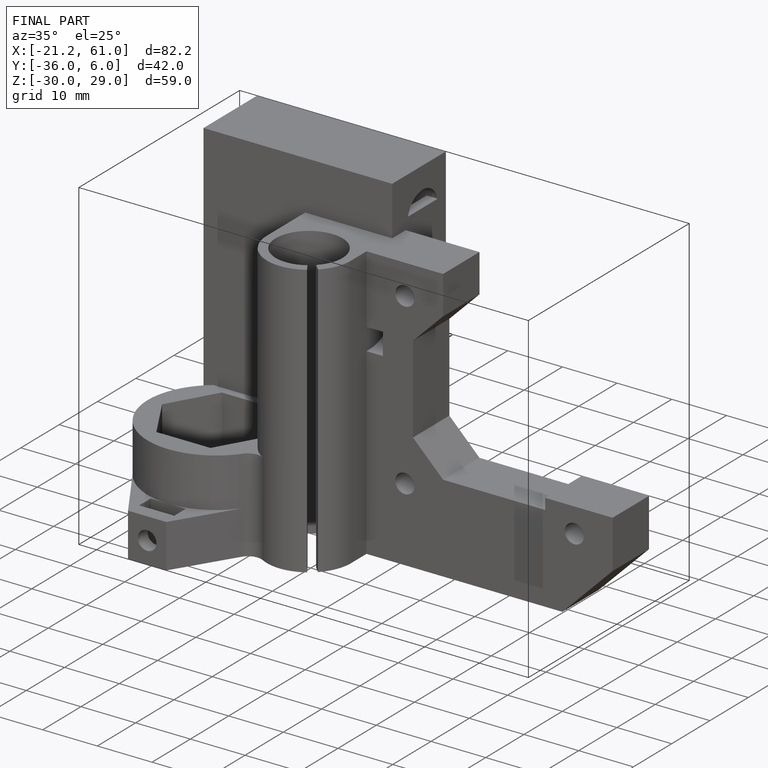
[diagram: finished part — iso view with bounding-box wireframe]
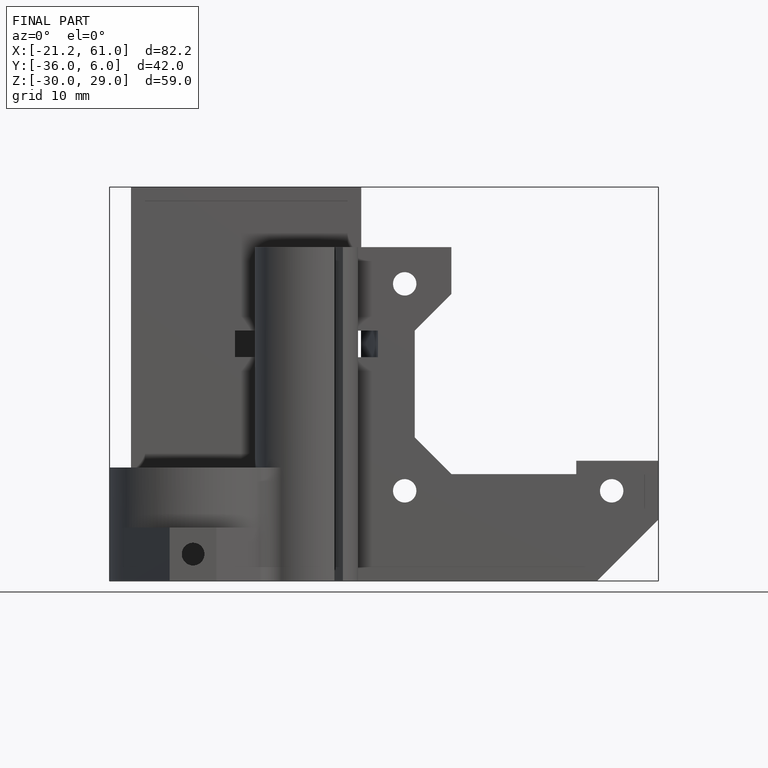
[diagram: finished part — front view with bounding-box wireframe]
